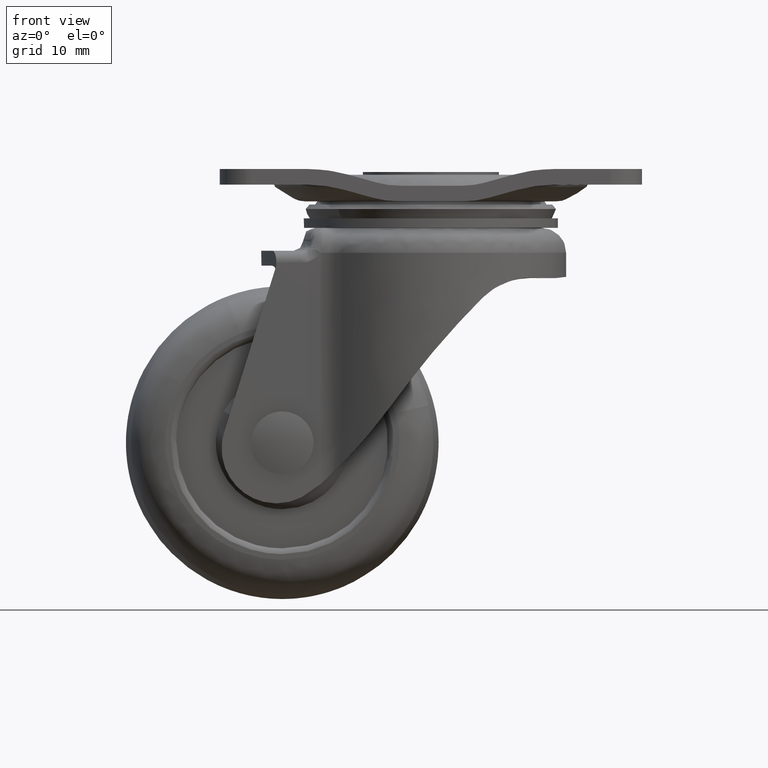
[diagram: clean part render]
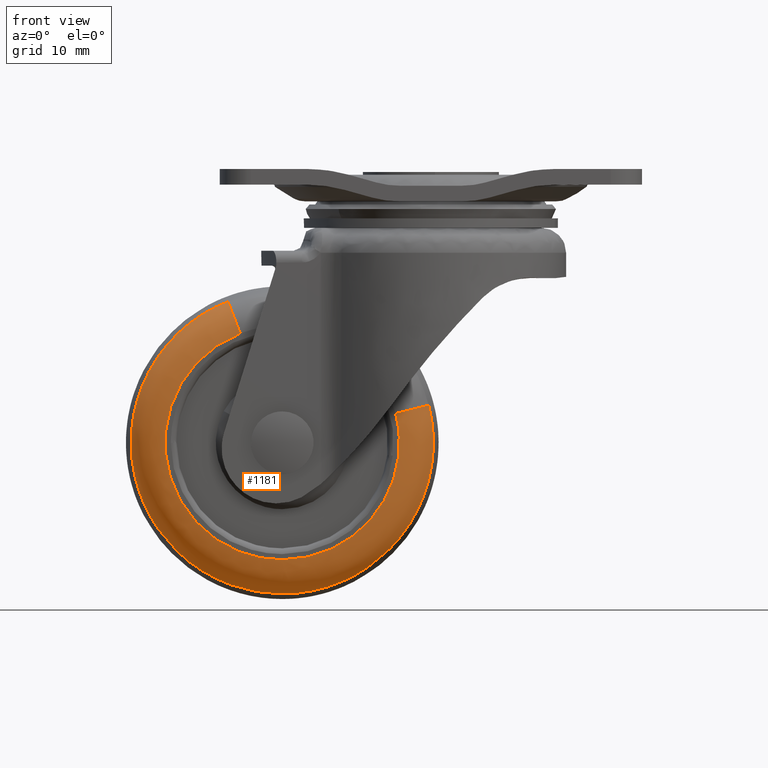
[diagram: same view with one face highlighted and labeled with its STEP entity id]
A machine part, front view. The second image highlights one B-rep face of the part: STEP entity #1181.
In plain terms, the highlighted face is a freeform B-spline surface patch.
Its self-contained STEP definition (entity closure, byte-faithful):
#1052=CARTESIAN_POINT('',(-25.956393406693007,-4.897730130960938,-16.906861976356399));
#1053=CARTESIAN_POINT('',(-42.068347399628770,-4.897730130960939,-23.101472572703791));
#1054=CARTESIAN_POINT('',(-37.775522947283115,-4.897730130960939,-39.820919935945248));
#1055=CARTESIAN_POINT('',(-32.954788011337975,-4.897730130960938,-58.596442883228370));
#1056=CARTESIAN_POINT('',(-14.179265064054860,-4.897730130960939,-53.775707947283209));
#1057=CARTESIAN_POINT('',(4.596257883228258,-4.897730130960938,-48.954973011338105));
#1058=CARTESIAN_POINT('',(-0.224477052716883,-4.897730130960939,-30.179450064054954));
#1059=CARTESIAN_POINT('',(-25.676619020886939,-8.727095878432472,-17.634544848814450));
#1060=CARTESIAN_POINT('',(-41.140577455064914,-8.727095878432472,-23.580018676497602));
#1061=CARTESIAN_POINT('',(-37.020403146883439,-8.727095878432470,-39.627038124353021));
#1062=CARTESIAN_POINT('',(-32.393550022530519,-8.727095878432470,-57.647441271236445));
#1063=CARTESIAN_POINT('',(-14.373146875647084,-8.727095878432470,-53.020588146883533));
#1064=CARTESIAN_POINT('',(3.647256271236338,-8.727095878432470,-48.393735022530635));
#1065=CARTESIAN_POINT('',(-0.979596853116572,-8.727095878432470,-30.373331875647185));
#1066=CARTESIAN_POINT('',(-24.276753622257196,-8.491838464836150,-21.275543188940034));
#1067=CARTESIAN_POINT('',(-36.498433251828644,-8.491838464836148,-25.974448496868575));
#1068=CARTESIAN_POINT('',(-33.242122739425106,-8.491838464836150,-38.656940598485320));
#1069=CARTESIAN_POINT('',(-29.585367140939884,-8.491838464836150,-52.899063337910420));
#1070=CARTESIAN_POINT('',(-15.343244401514774,-8.491838464836150,-49.242307739425200));
#1071=CARTESIAN_POINT('',(-1.101121662089685,-8.491838464836150,-45.585552140939988));
#1072=CARTESIAN_POINT('',(-4.757877260574903,-8.491838464836150,-31.343429401514864));
#1080=(BOUNDED_SURFACE()B_SPLINE_SURFACE(2,2,((#1052,#1059,#1066),(#1053,#1060,#1067),(#1054,#1061,#1068),(#1055,#1062,#1069),(#1056,#1063,#1070),(#1057,#1064,#1071),(#1058,#1065,#1072)),.UNSPECIFIED.,.F.,.F.,.U.)B_SPLINE_SURFACE_WITH_KNOTS((3,2,2,3),(3,3),(0.0,29.547943565080349,61.665273527124199,93.782603489168054),(0.0,6.724896624011820),.UNSPECIFIED.)GEOMETRIC_REPRESENTATION_ITEM()RATIONAL_B_SPLINE_SURFACE(((0.876327625290656,0.661306822248261,0.875406781161758),(0.669035559954785,0.504877134254485,0.668332538105846),(0.915811828211774,0.691102953294694,0.914849494124789),(0.647576754019395,0.488683584772728,0.646896281060721),(0.915811828211774,0.691102953294694,0.914849494124789),(0.647576754019395,0.488683584772728,0.646896281060721),(0.915811828211774,0.691102953294694,0.914849494124789)))REPRESENTATION_ITEM('')SURFACE());
#1081=CARTESIAN_POINT('',(-25.934154765964209,-5.161290322596051,-16.964703861767820));
#1082=VERTEX_POINT('',#1081);
#1083=CARTESIAN_POINT('',(-19.0,-5.161290322580670,-54.322738718544549));
#1084=VERTEX_POINT('',#1083);
#1085=CARTESIAN_POINT('',(-25.934154765964212,-5.161290322596052,-16.964703861767820));
#1086=CARTESIAN_POINT('',(-38.322553718544455,-5.161290322580670,-21.727708240814632));
#1087=CARTESIAN_POINT('',(-38.322553718544448,-5.161290322580670,-35.000185000000101));
#1088=CARTESIAN_POINT('',(-38.322553718544455,-5.161290322580670,-54.322738718544556));
#1089=CARTESIAN_POINT('',(-19.0,-5.161290322580670,-54.322738718544549));
#1097=(BOUNDED_CURVE()B_SPLINE_CURVE(2,(#1085,#1086,#1087,#1088,#1089),.UNSPECIFIED.,.F.,.U.)B_SPLINE_CURVE_WITH_KNOTS((3,2,3),(0.560939058909368,0.750000000000000,1.0),.UNSPECIFIED.)CURVE()GEOMETRIC_REPRESENTATION_ITEM()RATIONAL_B_SPLINE_CURVE((0.892016635832707,0.778501329648257,1.0,0.707106781186548,1.0))REPRESENTATION_ITEM(''));
#1098=EDGE_CURVE('',#1082,#1084,#1097,.T.);
#1099=ORIENTED_EDGE('',*,*,#1098,.T.);
#1100=CARTESIAN_POINT('',(-0.284496080715028,-5.161297111826601,-30.194883222817079));
#1101=VERTEX_POINT('',#1100);
#1102=CARTESIAN_POINT('',(-19.0,-5.161290322580670,-54.322738718544549));
#1103=CARTESIAN_POINT('',(0.322553037287481,-5.161292955723272,-54.322738893460773));
#1104=CARTESIAN_POINT('',(0.322552159017331,-5.161296350346238,-35.000185400416697));
#1105=CARTESIAN_POINT('',(0.322552048066520,-5.161296779184868,-32.559190490774490));
#1106=CARTESIAN_POINT('',(-0.284496080715028,-5.161297111826601,-30.194883222817076));
#1114=(BOUNDED_CURVE()B_SPLINE_CURVE(2,(#1102,#1103,#1104,#1105,#1106),.UNSPECIFIED.,.F.,.U.)B_SPLINE_CURVE_WITH_KNOTS((3,2,3),(0.0,0.250000000000000,0.292443052142563),.UNSPECIFIED.)CURVE()GEOMETRIC_REPRESENTATION_ITEM()RATIONAL_B_SPLINE_CURVE((1.0,0.707106781186548,1.0,0.950274871366790,0.917433632552580))REPRESENTATION_ITEM(''));
#1115=EDGE_CURVE('',#1084,#1101,#1114,.T.);
#1116=ORIENTED_EDGE('',*,*,#1115,.T.);
#1117=CARTESIAN_POINT('',(-4.495487373634216,-8.500000000000000,-31.276059129025189));
#1118=VERTEX_POINT('',#1117);
#1119=CARTESIAN_POINT('',(-0.284496080715028,-5.161297111826601,-30.194883222817072));
#1120=CARTESIAN_POINT('',(-1.148294806767410,-8.499999998392577,-30.416657593957567));
#1121=CARTESIAN_POINT('',(-4.495487373634216,-8.500000000000000,-31.276059129025185));
#1129=(BOUNDED_CURVE()B_SPLINE_CURVE(2,(#1119,#1120,#1121),.UNSPECIFIED.,.F.,.U.)B_SPLINE_CURVE_WITH_KNOTS((3,3),(-1.687867161780390,-0.315370897310934),.UNSPECIFIED.)CURVE()GEOMETRIC_REPRESENTATION_ITEM()RATIONAL_B_SPLINE_CURVE((0.896326713220784,0.710544175795842,0.895452162336917))REPRESENTATION_ITEM(''));
#1130=EDGE_CURVE('',#1101,#1118,#1129,.T.);
#1131=ORIENTED_EDGE('',*,*,#1130,.T.);
#1132=CARTESIAN_POINT('',(-19.0,-8.500000000000000,-49.975164131872042));
#1133=VERTEX_POINT('',#1132);
#1134=CARTESIAN_POINT('',(-19.0,-8.500000000000000,-49.975164131872042));
#1135=CARTESIAN_POINT('',(-4.025020868128060,-8.500000000000002,-49.975164131872056));
#1136=CARTESIAN_POINT('',(-4.025020868128060,-8.500000000000000,-35.000185000000101));
#1137=CARTESIAN_POINT('',(-4.025020868128060,-8.500000000000000,-33.108405193907721));
#1138=CARTESIAN_POINT('',(-4.495487373634216,-8.500000000000000,-31.276059129025189));
#1146=(BOUNDED_CURVE()B_SPLINE_CURVE(2,(#1134,#1135,#1136,#1137,#1138),.UNSPECIFIED.,.F.,.U.)B_SPLINE_CURVE_WITH_KNOTS((3,2,3),(0.0,0.250000000000000,0.292443238245728),.UNSPECIFIED.)CURVE()GEOMETRIC_REPRESENTATION_ITEM()RATIONAL_B_SPLINE_CURVE((1.0,0.707106781186548,1.0,0.950274653333370,0.917433344550125))REPRESENTATION_ITEM(''));
#1147=EDGE_CURVE('',#1133,#1118,#1146,.T.);
#1148=ORIENTED_EDGE('',*,*,#1147,.F.);
#1149=CARTESIAN_POINT('',(-24.373969944181280,-8.500000000000000,-21.022687116732779));
#1150=VERTEX_POINT('',#1149);
#1151=CARTESIAN_POINT('',(-24.373969944181283,-8.500000000000000,-21.022687116732776));
#1152=CARTESIAN_POINT('',(-33.974979131871955,-8.500000000000000,-24.714015511798628));
#1153=CARTESIAN_POINT('',(-33.974979131871940,-8.500000000000000,-35.000185000000101));
#1154=CARTESIAN_POINT('',(-33.974979131871933,-8.500000000000002,-49.975164131872056));
#1155=CARTESIAN_POINT('',(-19.0,-8.500000000000000,-49.975164131872042));
#1163=(BOUNDED_CURVE()B_SPLINE_CURVE(2,(#1151,#1152,#1153,#1154,#1155),.UNSPECIFIED.,.F.,.U.)B_SPLINE_CURVE_WITH_KNOTS((3,2,3),(0.560939058911762,0.750000000000000,1.0),.UNSPECIFIED.)CURVE()GEOMETRIC_REPRESENTATION_ITEM()RATIONAL_B_SPLINE_CURVE((0.892016635829833,0.778501329651061,1.0,0.707106781186548,1.0))REPRESENTATION_ITEM(''));
#1164=EDGE_CURVE('',#1150,#1133,#1163,.T.);
#1165=ORIENTED_EDGE('',*,*,#1164,.F.);
#1166=CARTESIAN_POINT('',(-25.934154765964220,-5.161290322596052,-16.964703861767816));
#1167=CARTESIAN_POINT('',(-25.614116853866896,-8.499999998066345,-17.797110683070382));
#1168=CARTESIAN_POINT('',(-24.373969944181280,-8.500000000000000,-21.022687116732783));
#1176=(BOUNDED_CURVE()B_SPLINE_CURVE(2,(#1166,#1167,#1168),.UNSPECIFIED.,.F.,.U.)B_SPLINE_CURVE_WITH_KNOTS((3,3),(-1.687868922129287,-0.315370897418509),.UNSPECIFIED.)CURVE()GEOMETRIC_REPRESENTATION_ITEM()RATIONAL_B_SPLINE_CURVE((0.857683045263785,0.679909631258141,0.856845743616269))REPRESENTATION_ITEM(''));
#1177=EDGE_CURVE('',#1082,#1150,#1176,.T.);
#1178=ORIENTED_EDGE('',*,*,#1177,.F.);
#1179=EDGE_LOOP('',(#1099,#1116,#1131,#1148,#1165,#1178));
#1180=FACE_OUTER_BOUND('',#1179,.T.);
#1181=ADVANCED_FACE('',(#1180),#1080,.T.);